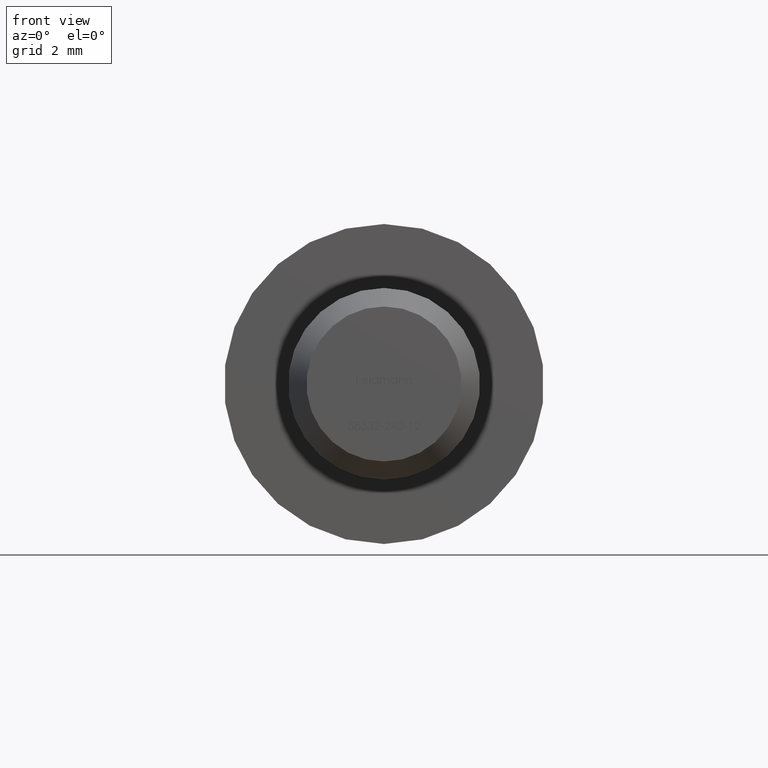
[diagram: clean part render]
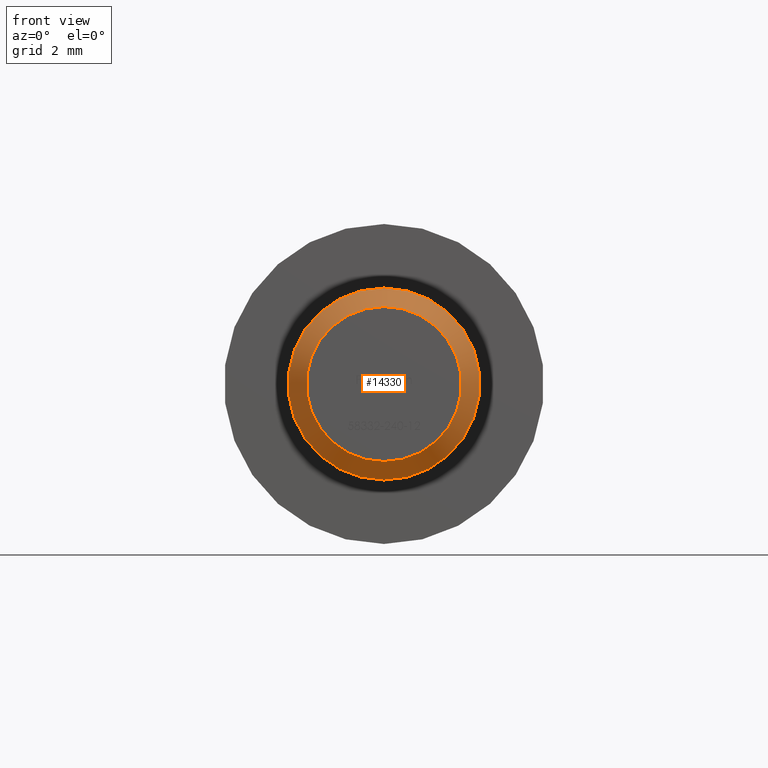
[diagram: same view with one face highlighted and labeled with its STEP entity id]
A machine part, front view. The second image highlights one B-rep face of the part: STEP entity #14330.
In plain terms, the highlighted conical surface has half-angle 30 deg.
Its self-contained STEP definition (entity closure, byte-faithful):
#259 = CONICAL_SURFACE ( 'NONE', #13036, 2.422649730810371200, 0.5235987755982966000 ) ;
#954 = CARTESIAN_POINT ( 'NONE',  ( 0.0000000000000000000, -10.99999999999998900, 0.0000000000000000000 ) ) ;
#1671 = CARTESIAN_POINT ( 'NONE',  ( 0.0000000000000000000, -12.00000000000000000, 0.0000000000000000000 ) ) ;
#2312 = DIRECTION ( 'NONE',  ( 0.0000000000000000000, 1.000000000000000000, 0.0000000000000000000 ) ) ;
#2468 = CARTESIAN_POINT ( 'NONE',  ( 0.0000000000000000000, -10.99999999999998900, -3.000000000000000400 ) ) ;
#3721 = CIRCLE ( 'NONE', #4884, 2.422649730810371200 ) ;
#3773 = DIRECTION ( 'NONE',  ( 0.0000000000000000000, 0.0000000000000000000, -1.000000000000000000 ) ) ;
#3834 = AXIS2_PLACEMENT_3D ( 'NONE', #954, #2312, #3773 ) ;
#4884 = AXIS2_PLACEMENT_3D ( 'NONE', #1671, #16826, #5947 ) ;
#5947 = DIRECTION ( 'NONE',  ( 0.0000000000000000000, 0.0000000000000000000, -1.000000000000000000 ) ) ;
#6657 = EDGE_CURVE ( 'NONE', #9874, #9874, #9166, .T. ) ;
#6870 = CARTESIAN_POINT ( 'NONE',  ( 0.0000000000000000000, -12.00000000000000000, -2.422649730810371200 ) ) ;
#7080 = DIRECTION ( 'NONE',  ( 0.0000000000000000000, 0.0000000000000000000, 1.000000000000000000 ) ) ;
#7253 = CARTESIAN_POINT ( 'NONE',  ( 0.0000000000000000000, -12.00000000000000000, 0.0000000000000000000 ) ) ;
#7988 = FACE_OUTER_BOUND ( 'NONE', #16264, .T. ) ;
#8409 = FACE_BOUND ( 'NONE', #14374, .T. ) ;
#9166 = CIRCLE ( 'NONE', #3834, 3.000000000000000400 ) ;
#9801 = DIRECTION ( 'NONE',  ( 0.0000000000000000000, 1.000000000000000000, 0.0000000000000000000 ) ) ;
#9874 = VERTEX_POINT ( 'NONE', #2468 ) ;
#12830 = EDGE_CURVE ( 'NONE', #13961, #13961, #3721, .T. ) ;
#13036 = AXIS2_PLACEMENT_3D ( 'NONE', #7253, #9801, #7080 ) ;
#13153 = ORIENTED_EDGE ( 'NONE', *, *, #6657, .F. ) ;
#13961 = VERTEX_POINT ( 'NONE', #6870 ) ;
#14330 = ADVANCED_FACE ( 'NONE', ( #7988, #8409 ), #259, .T. ) ;
#14374 = EDGE_LOOP ( 'NONE', ( #15169 ) ) ;
#15169 = ORIENTED_EDGE ( 'NONE', *, *, #12830, .F. ) ;
#16264 = EDGE_LOOP ( 'NONE', ( #13153 ) ) ;
#16826 = DIRECTION ( 'NONE',  ( 0.0000000000000000000, -1.000000000000000000, 0.0000000000000000000 ) ) ;